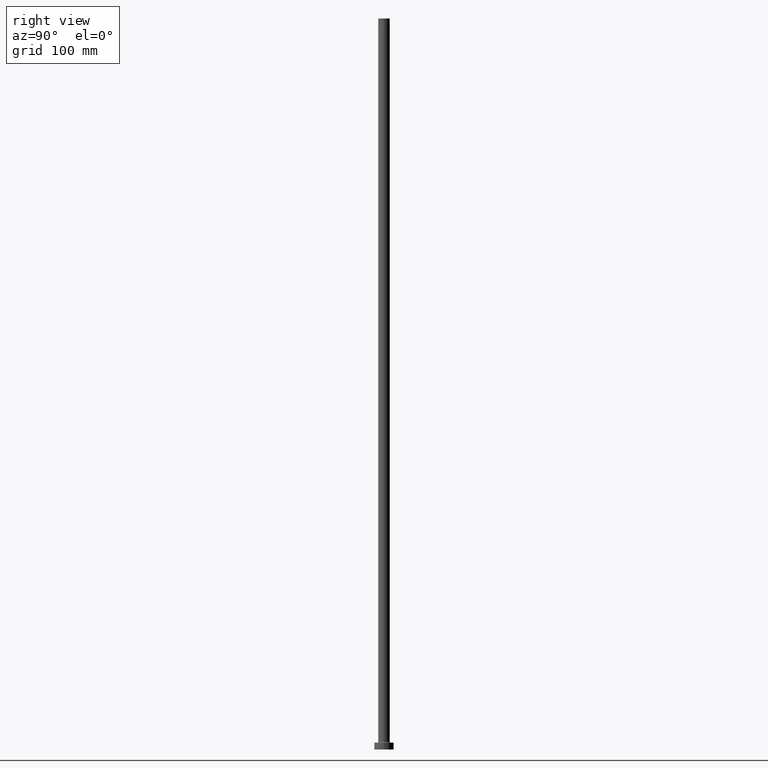
[diagram: clean part render]
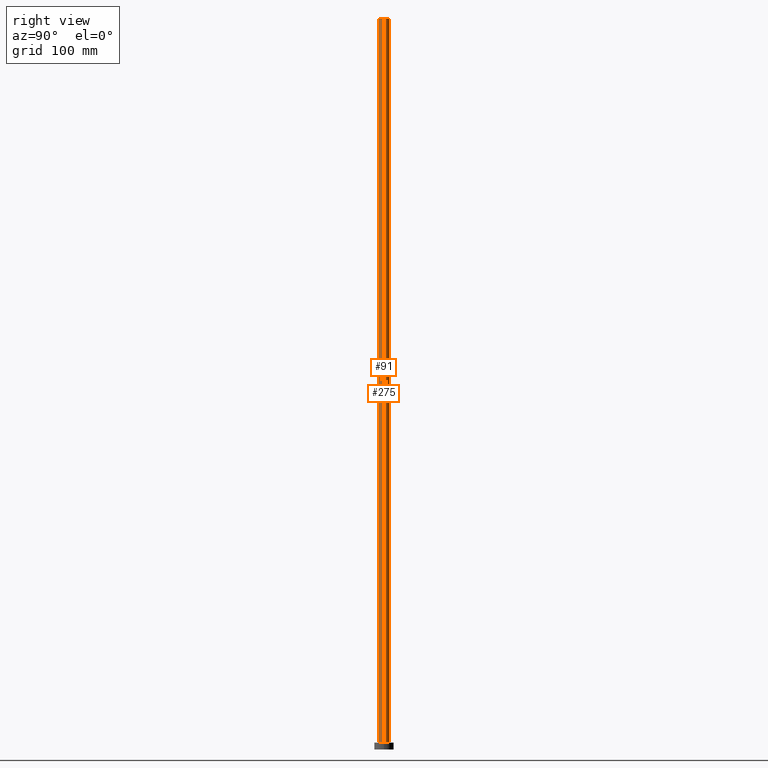
[diagram: same view with one multi-face feature highlighted, each face labeled with its STEP entity id]
A machine part, right view. The highlighted faces form ONE feature: a constant-radius fillet chain: 2 tangent blend faces with common blend radius 6 mm. The faces share edges in the B-rep.
Their STEP definitions:
[1] entity #91 (Cylinder):
#18 = CARTESIAN_POINT ( 'NONE',  ( -6.000000000000000888, 0.000000000000000000, 750.0000000000000000 ) ) ;
#51 = DIRECTION ( 'NONE',  ( 0.000000000000000000, 0.000000000000000000, 1.000000000000000000 ) ) ;
#52 = AXIS2_PLACEMENT_3D ( 'NONE', #201, #165, #306 ) ;
#55 = CARTESIAN_POINT ( 'NONE',  ( 0.000000000000000000, 0.000000000000000000, 750.0000000000000000 ) ) ;
#82 = DIRECTION ( 'NONE',  ( 1.000000000000000000, 0.000000000000000000, 0.000000000000000000 ) ) ;
#91 = ADVANCED_FACE ( 'NONE', ( #205 ), #370, .T. ) ;
#92 = DIRECTION ( 'NONE',  ( 1.000000000000000000, 0.000000000000000000, 0.000000000000000000 ) ) ;
#94 = VERTEX_POINT ( 'NONE', #438 ) ;
#101 = DIRECTION ( 'NONE',  ( -0.000000000000000000, -0.000000000000000000, -1.000000000000000000 ) ) ;
#159 = CIRCLE ( 'NONE', #425, 6.000000000000000888 ) ;
#165 = DIRECTION ( 'NONE',  ( -0.000000000000000000, -0.000000000000000000, -1.000000000000000000 ) ) ;
#173 = EDGE_LOOP ( 'NONE', ( #240, #390, #295, #327 ) ) ;
#178 = EDGE_CURVE ( 'NONE', #360, #192, #354, .T. ) ;
#179 = LINE ( 'NONE', #384, #191 ) ;
#191 = VECTOR ( 'NONE', #245, 1000.000000000000000 ) ;
#192 = VERTEX_POINT ( 'NONE', #345 ) ;
#201 = CARTESIAN_POINT ( 'NONE',  ( 0.000000000000000000, 0.000000000000000000, 750.0000000000000000 ) ) ;
#204 = CARTESIAN_POINT ( 'NONE',  ( 0.000000000000000000, 0.000000000000000000, 7.700000000000040146 ) ) ;
#205 = FACE_OUTER_BOUND ( 'NONE', #173, .T. ) ;
#226 = EDGE_CURVE ( 'NONE', #94, #238, #179, .T. ) ;
#238 = VERTEX_POINT ( 'NONE', #320 ) ;
#240 = ORIENTED_EDGE ( 'NONE', *, *, #226, .F. ) ;
#245 = DIRECTION ( 'NONE',  ( -0.000000000000000000, -0.000000000000000000, -1.000000000000000000 ) ) ;
#267 = DIRECTION ( 'NONE',  ( 0.000000000000000000, 0.000000000000000000, 1.000000000000000000 ) ) ;
#279 = AXIS2_PLACEMENT_3D ( 'NONE', #204, #267, #92 ) ;
#295 = ORIENTED_EDGE ( 'NONE', *, *, #178, .T. ) ;
#306 = DIRECTION ( 'NONE',  ( -1.000000000000000000, 0.000000000000000000, 0.000000000000000000 ) ) ;
#320 = CARTESIAN_POINT ( 'NONE',  ( 6.000000000000000888, 7.347880794884119736E-16, 7.700000000000040146 ) ) ;
#327 = ORIENTED_EDGE ( 'NONE', *, *, #329, .T. ) ;
#329 = EDGE_CURVE ( 'NONE', #192, #238, #337, .T. ) ;
#337 = CIRCLE ( 'NONE', #279, 6.000000000000000888 ) ;
#345 = CARTESIAN_POINT ( 'NONE',  ( -6.000000000000000888, 0.000000000000000000, 7.700000000000040146 ) ) ;
#354 = LINE ( 'NONE', #449, #406 ) ;
#360 = VERTEX_POINT ( 'NONE', #18 ) ;
#370 = CYLINDRICAL_SURFACE ( 'NONE', #52, 6.000000000000000888 ) ;
#383 = EDGE_CURVE ( 'NONE', #360, #94, #159, .T. ) ;
#384 = CARTESIAN_POINT ( 'NONE',  ( 6.000000000000000888, 7.347880794884119736E-16, 750.0000000000000000 ) ) ;
#390 = ORIENTED_EDGE ( 'NONE', *, *, #383, .F. ) ;
#406 = VECTOR ( 'NONE', #101, 1000.000000000000000 ) ;
#425 = AXIS2_PLACEMENT_3D ( 'NONE', #55, #51, #82 ) ;
#438 = CARTESIAN_POINT ( 'NONE',  ( 6.000000000000000888, 7.347880794884119736E-16, 750.0000000000000000 ) ) ;
#449 = CARTESIAN_POINT ( 'NONE',  ( -6.000000000000000888, 0.000000000000000000, 750.0000000000000000 ) ) ;
[2] entity #275 (Cylinder):
#7 = ORIENTED_EDGE ( 'NONE', *, *, #178, .F. ) ;
#18 = CARTESIAN_POINT ( 'NONE',  ( -6.000000000000000888, 0.000000000000000000, 750.0000000000000000 ) ) ;
#44 = CIRCLE ( 'NONE', #87, 6.000000000000000888 ) ;
#68 = DIRECTION ( 'NONE',  ( -1.000000000000000000, 0.000000000000000000, 0.000000000000000000 ) ) ;
#87 = AXIS2_PLACEMENT_3D ( 'NONE', #376, #444, #349 ) ;
#94 = VERTEX_POINT ( 'NONE', #438 ) ;
#101 = DIRECTION ( 'NONE',  ( -0.000000000000000000, -0.000000000000000000, -1.000000000000000000 ) ) ;
#111 = EDGE_CURVE ( 'NONE', #94, #360, #44, .T. ) ;
#140 = FACE_OUTER_BOUND ( 'NONE', #419, .T. ) ;
#141 = DIRECTION ( 'NONE',  ( -0.000000000000000000, -0.000000000000000000, -1.000000000000000000 ) ) ;
#178 = EDGE_CURVE ( 'NONE', #360, #192, #354, .T. ) ;
#179 = LINE ( 'NONE', #384, #191 ) ;
#191 = VECTOR ( 'NONE', #245, 1000.000000000000000 ) ;
#192 = VERTEX_POINT ( 'NONE', #345 ) ;
#197 = DIRECTION ( 'NONE',  ( 1.000000000000000000, 0.000000000000000000, 0.000000000000000000 ) ) ;
#214 = CIRCLE ( 'NONE', #324, 6.000000000000000888 ) ;
#223 = ORIENTED_EDGE ( 'NONE', *, *, #111, .F. ) ;
#226 = EDGE_CURVE ( 'NONE', #94, #238, #179, .T. ) ;
#227 = AXIS2_PLACEMENT_3D ( 'NONE', #453, #141, #68 ) ;
#230 = DIRECTION ( 'NONE',  ( 0.000000000000000000, 0.000000000000000000, 1.000000000000000000 ) ) ;
#238 = VERTEX_POINT ( 'NONE', #320 ) ;
#245 = DIRECTION ( 'NONE',  ( -0.000000000000000000, -0.000000000000000000, -1.000000000000000000 ) ) ;
#249 = ORIENTED_EDGE ( 'NONE', *, *, #388, .T. ) ;
#262 = ORIENTED_EDGE ( 'NONE', *, *, #226, .T. ) ;
#275 = ADVANCED_FACE ( 'NONE', ( #140 ), #283, .T. ) ;
#283 = CYLINDRICAL_SURFACE ( 'NONE', #227, 6.000000000000000888 ) ;
#320 = CARTESIAN_POINT ( 'NONE',  ( 6.000000000000000888, 7.347880794884119736E-16, 7.700000000000040146 ) ) ;
#324 = AXIS2_PLACEMENT_3D ( 'NONE', #339, #230, #197 ) ;
#339 = CARTESIAN_POINT ( 'NONE',  ( 0.000000000000000000, 0.000000000000000000, 7.700000000000040146 ) ) ;
#345 = CARTESIAN_POINT ( 'NONE',  ( -6.000000000000000888, 0.000000000000000000, 7.700000000000040146 ) ) ;
#349 = DIRECTION ( 'NONE',  ( 1.000000000000000000, 0.000000000000000000, 0.000000000000000000 ) ) ;
#354 = LINE ( 'NONE', #449, #406 ) ;
#360 = VERTEX_POINT ( 'NONE', #18 ) ;
#376 = CARTESIAN_POINT ( 'NONE',  ( 0.000000000000000000, 0.000000000000000000, 750.0000000000000000 ) ) ;
#384 = CARTESIAN_POINT ( 'NONE',  ( 6.000000000000000888, 7.347880794884119736E-16, 750.0000000000000000 ) ) ;
#388 = EDGE_CURVE ( 'NONE', #238, #192, #214, .T. ) ;
#406 = VECTOR ( 'NONE', #101, 1000.000000000000000 ) ;
#419 = EDGE_LOOP ( 'NONE', ( #223, #262, #249, #7 ) ) ;
#438 = CARTESIAN_POINT ( 'NONE',  ( 6.000000000000000888, 7.347880794884119736E-16, 750.0000000000000000 ) ) ;
#444 = DIRECTION ( 'NONE',  ( 0.000000000000000000, 0.000000000000000000, 1.000000000000000000 ) ) ;
#449 = CARTESIAN_POINT ( 'NONE',  ( -6.000000000000000888, 0.000000000000000000, 750.0000000000000000 ) ) ;
#453 = CARTESIAN_POINT ( 'NONE',  ( 0.000000000000000000, 0.000000000000000000, 750.0000000000000000 ) ) ;